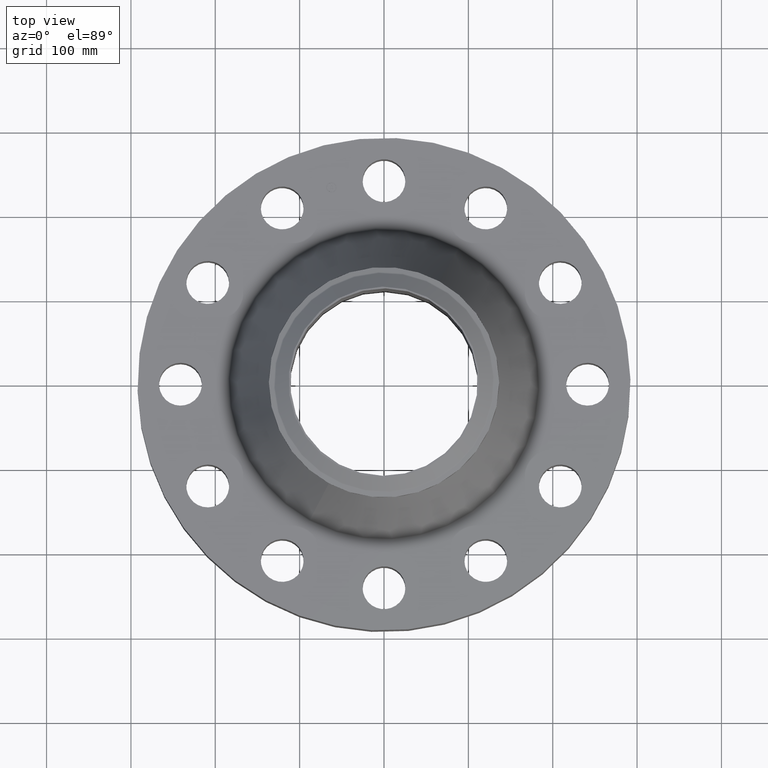
[diagram: clean part render]
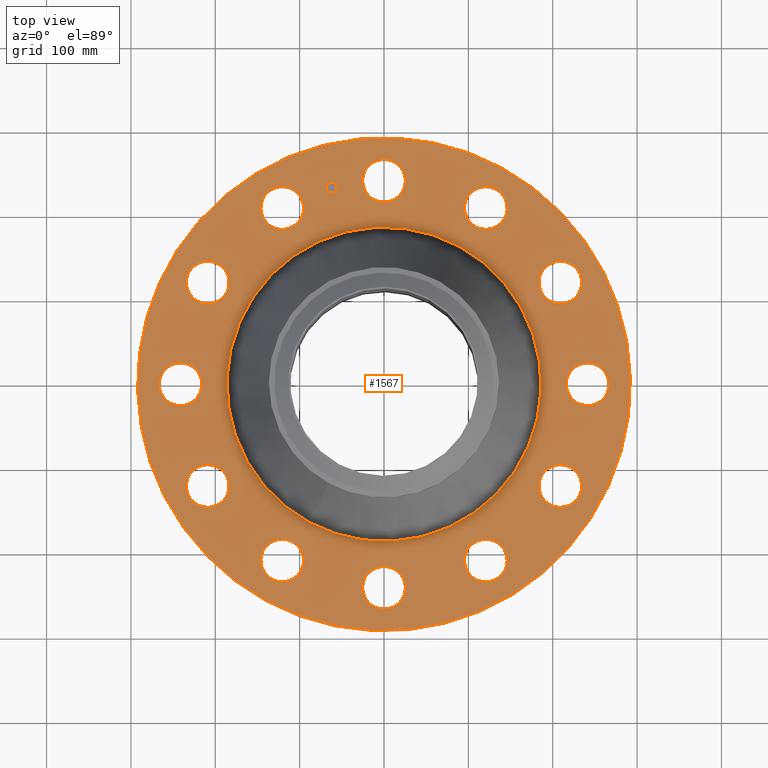
[diagram: same view with one face highlighted and labeled with its STEP entity id]
A machine part, top view. The second image highlights one B-rep face of the part: STEP entity #1567.
In plain terms, the highlighted planar face has unit normal (0, 0, -1).
Its self-contained STEP definition (entity closure, byte-faithful):
#65=AXIS2_PLACEMENT_3D('Circle Axis2P3D',#63,#64,$) ;
#82=AXIS2_PLACEMENT_3D('Circle Axis2P3D',#80,#81,$) ;
#115=AXIS2_PLACEMENT_3D('Circle Axis2P3D',#113,#114,$) ;
#139=AXIS2_PLACEMENT_3D('Circle Axis2P3D',#137,#138,$) ;
#156=AXIS2_PLACEMENT_3D('Circle Axis2P3D',#154,#155,$) ;
#191=AXIS2_PLACEMENT_3D('Circle Axis2P3D',#189,#190,$) ;
#804=AXIS2_PLACEMENT_3D('Circle Axis2P3D',#802,#803,$) ;
#816=AXIS2_PLACEMENT_3D('Circle Axis2P3D',#814,#815,$) ;
#847=AXIS2_PLACEMENT_3D('Circle Axis2P3D',#845,#846,$) ;
#859=AXIS2_PLACEMENT_3D('Circle Axis2P3D',#857,#858,$) ;
#890=AXIS2_PLACEMENT_3D('Circle Axis2P3D',#888,#889,$) ;
#902=AXIS2_PLACEMENT_3D('Circle Axis2P3D',#900,#901,$) ;
#933=AXIS2_PLACEMENT_3D('Circle Axis2P3D',#931,#932,$) ;
#945=AXIS2_PLACEMENT_3D('Circle Axis2P3D',#943,#944,$) ;
#976=AXIS2_PLACEMENT_3D('Circle Axis2P3D',#974,#975,$) ;
#988=AXIS2_PLACEMENT_3D('Circle Axis2P3D',#986,#987,$) ;
#1019=AXIS2_PLACEMENT_3D('Circle Axis2P3D',#1017,#1018,$) ;
#1031=AXIS2_PLACEMENT_3D('Circle Axis2P3D',#1029,#1030,$) ;
#1062=AXIS2_PLACEMENT_3D('Circle Axis2P3D',#1060,#1061,$) ;
#1074=AXIS2_PLACEMENT_3D('Circle Axis2P3D',#1072,#1073,$) ;
#1105=AXIS2_PLACEMENT_3D('Circle Axis2P3D',#1103,#1104,$) ;
#1117=AXIS2_PLACEMENT_3D('Circle Axis2P3D',#1115,#1116,$) ;
#1148=AXIS2_PLACEMENT_3D('Circle Axis2P3D',#1146,#1147,$) ;
#1160=AXIS2_PLACEMENT_3D('Circle Axis2P3D',#1158,#1159,$) ;
#1191=AXIS2_PLACEMENT_3D('Circle Axis2P3D',#1189,#1190,$) ;
#1203=AXIS2_PLACEMENT_3D('Circle Axis2P3D',#1201,#1202,$) ;
#1234=AXIS2_PLACEMENT_3D('Circle Axis2P3D',#1232,#1233,$) ;
#1246=AXIS2_PLACEMENT_3D('Circle Axis2P3D',#1244,#1245,$) ;
#1491=AXIS2_PLACEMENT_3D('Plane Axis2P3D',#1488,#1489,#1490) ;
#1551=AXIS2_PLACEMENT_3D('Circle Axis2P3D',#1549,#1550,$) ;
#1560=AXIS2_PLACEMENT_3D('Circle Axis2P3D',#1558,#1559,$) ;
#46=CARTESIAN_POINT('Vertex',(-0.877582561894,9.97942553864,4.25000000002)) ;
#60=CARTESIAN_POINT('Vertex',(0.877582561894,9.02057446143,4.25000000002)) ;
#63=CARTESIAN_POINT('Axis2P3D Location',(0.,9.50000000004,4.25000000002)) ;
#80=CARTESIAN_POINT('Axis2P3D Location',(0.,9.50000000004,4.25000000002)) ;
#110=CARTESIAN_POINT('Vertex',(-5.51339369397,-10.0921994618,4.25000000002)) ;
#113=CARTESIAN_POINT('Axis2P3D Location',(0.,0.,4.25000000002)) ;
#117=CARTESIAN_POINT('Vertex',(5.51339369397,10.0921994618,4.25000000002)) ;
#137=CARTESIAN_POINT('Axis2P3D Location',(0.,0.,4.25000000002)) ;
#154=CARTESIAN_POINT('Axis2P3D Location',(0.,0.,4.25000000002)) ;
#158=CARTESIAN_POINT('Vertex',(3.51557957745,6.43522525122,4.25000000002)) ;
#160=CARTESIAN_POINT('Vertex',(-3.51557957745,-6.43522525122,4.25000000002)) ;
#189=CARTESIAN_POINT('Axis2P3D Location',(0.,0.,4.25000000002)) ;
#792=CARTESIAN_POINT('Vertex',(-4.2297039768,-9.08122731259,4.25000000002)) ;
#799=CARTESIAN_POINT('Vertex',(-5.27029602323,-7.37325535938,4.25000000002)) ;
#802=CARTESIAN_POINT('Axis2P3D Location',(-4.75000000002,-8.22724133599,4.25000000002)) ;
#814=CARTESIAN_POINT('Axis2P3D Location',(-4.75000000002,-8.22724133599,4.25000000002)) ;
#835=CARTESIAN_POINT('Vertex',(8.20364475069,5.74972156184,4.25000000002)) ;
#842=CARTESIAN_POINT('Vertex',(8.25083792128,3.7502784382,4.25000000002)) ;
#845=CARTESIAN_POINT('Axis2P3D Location',(8.22724133599,4.75000000002,4.25000000002)) ;
#857=CARTESIAN_POINT('Axis2P3D Location',(8.22724133599,4.75000000002,4.25000000002)) ;
#878=CARTESIAN_POINT('Vertex',(-8.20364475069,-5.74972156184,4.25000000002)) ;
#885=CARTESIAN_POINT('Vertex',(-8.25083792128,-3.7502784382,4.25000000002)) ;
#888=CARTESIAN_POINT('Axis2P3D Location',(-8.22724133599,-4.75000000002,4.25000000002)) ;
#900=CARTESIAN_POINT('Axis2P3D Location',(-8.22724133599,-4.75000000002,4.25000000002)) ;
#921=CARTESIAN_POINT('Vertex',(9.97942553864,0.877582561894,4.25000000002)) ;
#928=CARTESIAN_POINT('Vertex',(9.02057446143,-0.877582561894,4.25000000002)) ;
#931=CARTESIAN_POINT('Axis2P3D Location',(9.50000000004,5.81707229597E-016,4.25000000002)) ;
#943=CARTESIAN_POINT('Axis2P3D Location',(9.50000000004,5.81707229597E-016,4.25000000002)) ;
#964=CARTESIAN_POINT('Vertex',(-9.97942553864,-0.877582561894,4.25000000002)) ;
#971=CARTESIAN_POINT('Vertex',(-9.02057446143,0.877582561894,4.25000000002)) ;
#974=CARTESIAN_POINT('Axis2P3D Location',(-9.50000000004,-1.74512168879E-015,4.25000000002)) ;
#986=CARTESIAN_POINT('Axis2P3D Location',(-9.50000000004,-1.74512168879E-015,4.25000000002)) ;
#1007=CARTESIAN_POINT('Vertex',(9.08122731259,-4.2297039768,4.25000000002)) ;
#1014=CARTESIAN_POINT('Vertex',(7.37325535938,-5.27029602323,4.25000000002)) ;
#1017=CARTESIAN_POINT('Axis2P3D Location',(8.22724133599,-4.75000000002,4.25000000002)) ;
#1029=CARTESIAN_POINT('Axis2P3D Location',(8.22724133599,-4.75000000002,4.25000000002)) ;
#1050=CARTESIAN_POINT('Vertex',(-9.08122731259,4.2297039768,4.25000000002)) ;
#1057=CARTESIAN_POINT('Vertex',(-7.37325535938,5.27029602323,4.25000000002)) ;
#1060=CARTESIAN_POINT('Axis2P3D Location',(-8.22724133599,4.75000000002,4.25000000002)) ;
#1072=CARTESIAN_POINT('Axis2P3D Location',(-8.22724133599,4.75000000002,4.25000000002)) ;
#1093=CARTESIAN_POINT('Vertex',(5.74972156184,-8.20364475069,4.25000000002)) ;
#1100=CARTESIAN_POINT('Vertex',(3.7502784382,-8.25083792128,4.25000000002)) ;
#1103=CARTESIAN_POINT('Axis2P3D Location',(4.75000000002,-8.22724133599,4.25000000002)) ;
#1115=CARTESIAN_POINT('Axis2P3D Location',(4.75000000002,-8.22724133599,4.25000000002)) ;
#1136=CARTESIAN_POINT('Vertex',(-5.74972156184,8.20364475069,4.25000000002)) ;
#1143=CARTESIAN_POINT('Vertex',(-3.7502784382,8.25083792128,4.25000000002)) ;
#1146=CARTESIAN_POINT('Axis2P3D Location',(-4.75000000002,8.22724133599,4.25000000002)) ;
#1158=CARTESIAN_POINT('Axis2P3D Location',(-4.75000000002,8.22724133599,4.25000000002)) ;
#1179=CARTESIAN_POINT('Vertex',(0.877582561894,-9.97942553864,4.25000000002)) ;
#1186=CARTESIAN_POINT('Vertex',(-0.877582561894,-9.02057446143,4.25000000002)) ;
#1189=CARTESIAN_POINT('Axis2P3D Location',(1.16341445919E-015,-9.50000000004,4.25000000002)) ;
#1201=CARTESIAN_POINT('Axis2P3D Location',(1.16341445919E-015,-9.50000000004,4.25000000002)) ;
#1222=CARTESIAN_POINT('Vertex',(4.2297039768,9.08122731259,4.25000000002)) ;
#1229=CARTESIAN_POINT('Vertex',(5.27029602323,7.37325535938,4.25000000002)) ;
#1232=CARTESIAN_POINT('Axis2P3D Location',(4.75000000002,8.22724133599,4.25000000002)) ;
#1244=CARTESIAN_POINT('Axis2P3D Location',(4.75000000002,8.22724133599,4.25000000002)) ;
#1488=CARTESIAN_POINT('Axis2P3D Location',(0.,11.5,4.25000000002)) ;
#1549=CARTESIAN_POINT('Axis2P3D Location',(-2.45878092848,9.17629534978,4.25000000002)) ;
#1553=CARTESIAN_POINT('Vertex',(-2.69784757049,9.11223763612,4.25000000002)) ;
#1555=CARTESIAN_POINT('Vertex',(-2.21971428648,9.24035306345,4.25000000002)) ;
#1558=CARTESIAN_POINT('Axis2P3D Location',(-2.45878092848,9.17629534978,4.25000000002)) ;
#64=DIRECTION('Axis2P3D Direction',(0.,-0.,-0.0393700787402)) ;
#81=DIRECTION('Axis2P3D Direction',(0.,-0.,-0.0393700787402)) ;
#114=DIRECTION('Axis2P3D Direction',(0.,0.,-0.0393700787402)) ;
#138=DIRECTION('Axis2P3D Direction',(0.,0.,-0.0393700787402)) ;
#155=DIRECTION('Axis2P3D Direction',(0.,0.,-0.0393700787402)) ;
#190=DIRECTION('Axis2P3D Direction',(0.,0.,-0.0393700787402)) ;
#803=DIRECTION('Axis2P3D Direction',(0.,0.,-0.0393700787402)) ;
#815=DIRECTION('Axis2P3D Direction',(0.,0.,-0.0393700787402)) ;
#846=DIRECTION('Axis2P3D Direction',(0.,-0.,-0.0393700787402)) ;
#858=DIRECTION('Axis2P3D Direction',(0.,-0.,-0.0393700787402)) ;
#889=DIRECTION('Axis2P3D Direction',(0.,0.,-0.0393700787402)) ;
#901=DIRECTION('Axis2P3D Direction',(0.,0.,-0.0393700787402)) ;
#932=DIRECTION('Axis2P3D Direction',(0.,-0.,-0.0393700787402)) ;
#944=DIRECTION('Axis2P3D Direction',(0.,-0.,-0.0393700787402)) ;
#975=DIRECTION('Axis2P3D Direction',(0.,0.,-0.0393700787402)) ;
#987=DIRECTION('Axis2P3D Direction',(0.,0.,-0.0393700787402)) ;
#1018=DIRECTION('Axis2P3D Direction',(-0.,0.,-0.0393700787402)) ;
#1030=DIRECTION('Axis2P3D Direction',(-0.,0.,-0.0393700787402)) ;
#1061=DIRECTION('Axis2P3D Direction',(0.,0.,-0.0393700787402)) ;
#1073=DIRECTION('Axis2P3D Direction',(0.,0.,-0.0393700787402)) ;
#1104=DIRECTION('Axis2P3D Direction',(-0.,0.,-0.0393700787402)) ;
#1116=DIRECTION('Axis2P3D Direction',(-0.,0.,-0.0393700787402)) ;
#1147=DIRECTION('Axis2P3D Direction',(0.,0.,-0.0393700787402)) ;
#1159=DIRECTION('Axis2P3D Direction',(0.,0.,-0.0393700787402)) ;
#1190=DIRECTION('Axis2P3D Direction',(-0.,0.,-0.0393700787402)) ;
#1202=DIRECTION('Axis2P3D Direction',(-0.,0.,-0.0393700787402)) ;
#1233=DIRECTION('Axis2P3D Direction',(0.,-0.,-0.0393700787402)) ;
#1245=DIRECTION('Axis2P3D Direction',(0.,-0.,-0.0393700787402)) ;
#1489=DIRECTION('Axis2P3D Direction',(0.,0.,-0.0393700787402)) ;
#1490=DIRECTION('Axis2P3D XDirection',(0.0393700787402,0.,0.)) ;
#1550=DIRECTION('Axis2P3D Direction',(0.,0.,-0.0393700787402)) ;
#1559=DIRECTION('Axis2P3D Direction',(0.,0.,-0.0393700787402)) ;
#1494=ORIENTED_EDGE('',*,*,#141,.F.) ;
#1495=ORIENTED_EDGE('',*,*,#119,.F.) ;
#1498=ORIENTED_EDGE('',*,*,#67,.T.) ;
#1499=ORIENTED_EDGE('',*,*,#84,.T.) ;
#1502=ORIENTED_EDGE('',*,*,#193,.T.) ;
#1503=ORIENTED_EDGE('',*,*,#162,.T.) ;
#1506=ORIENTED_EDGE('',*,*,#1248,.T.) ;
#1507=ORIENTED_EDGE('',*,*,#1236,.T.) ;
#1510=ORIENTED_EDGE('',*,*,#861,.T.) ;
#1511=ORIENTED_EDGE('',*,*,#849,.T.) ;
#1514=ORIENTED_EDGE('',*,*,#947,.T.) ;
#1515=ORIENTED_EDGE('',*,*,#935,.T.) ;
#1518=ORIENTED_EDGE('',*,*,#1033,.T.) ;
#1519=ORIENTED_EDGE('',*,*,#1021,.T.) ;
#1522=ORIENTED_EDGE('',*,*,#1119,.T.) ;
#1523=ORIENTED_EDGE('',*,*,#1107,.T.) ;
#1526=ORIENTED_EDGE('',*,*,#1205,.T.) ;
#1527=ORIENTED_EDGE('',*,*,#1193,.T.) ;
#1530=ORIENTED_EDGE('',*,*,#818,.T.) ;
#1531=ORIENTED_EDGE('',*,*,#806,.T.) ;
#1534=ORIENTED_EDGE('',*,*,#904,.T.) ;
#1535=ORIENTED_EDGE('',*,*,#892,.T.) ;
#1538=ORIENTED_EDGE('',*,*,#990,.T.) ;
#1539=ORIENTED_EDGE('',*,*,#978,.T.) ;
#1542=ORIENTED_EDGE('',*,*,#1076,.T.) ;
#1543=ORIENTED_EDGE('',*,*,#1064,.T.) ;
#1546=ORIENTED_EDGE('',*,*,#1162,.T.) ;
#1547=ORIENTED_EDGE('',*,*,#1150,.T.) ;
#1564=ORIENTED_EDGE('',*,*,#1557,.T.) ;
#1565=ORIENTED_EDGE('',*,*,#1562,.T.) ;
#1500=FACE_BOUND('',#1497,.T.) ;
#1504=FACE_BOUND('',#1501,.T.) ;
#1508=FACE_BOUND('',#1505,.T.) ;
#1512=FACE_BOUND('',#1509,.T.) ;
#1516=FACE_BOUND('',#1513,.T.) ;
#1520=FACE_BOUND('',#1517,.T.) ;
#1524=FACE_BOUND('',#1521,.T.) ;
#1528=FACE_BOUND('',#1525,.T.) ;
#1532=FACE_BOUND('',#1529,.T.) ;
#1536=FACE_BOUND('',#1533,.T.) ;
#1540=FACE_BOUND('',#1537,.T.) ;
#1544=FACE_BOUND('',#1541,.T.) ;
#1548=FACE_BOUND('',#1545,.T.) ;
#1566=FACE_BOUND('',#1563,.T.) ;
#1567=ADVANCED_FACE('PartBody',(#1496,#1500,#1504,#1508,#1512,#1516,#1520,#1524,#1528,#1532,#1536,#1540,#1544,#1548,#1566),#1492,.F.) ;
#66=CIRCLE('generated circle',#65,1.) ;
#83=CIRCLE('generated circle',#82,1.) ;
#116=CIRCLE('generated circle',#115,11.5) ;
#140=CIRCLE('generated circle',#139,11.5) ;
#157=CIRCLE('generated circle',#156,7.33290009473) ;
#192=CIRCLE('generated circle',#191,7.33290009473) ;
#805=CIRCLE('generated circle',#804,1.) ;
#817=CIRCLE('generated circle',#816,1.) ;
#848=CIRCLE('generated circle',#847,1.) ;
#860=CIRCLE('generated circle',#859,1.) ;
#891=CIRCLE('generated circle',#890,1.) ;
#903=CIRCLE('generated circle',#902,1.) ;
#934=CIRCLE('generated circle',#933,1.) ;
#946=CIRCLE('generated circle',#945,1.) ;
#977=CIRCLE('generated circle',#976,1.) ;
#989=CIRCLE('generated circle',#988,1.) ;
#1020=CIRCLE('generated circle',#1019,1.) ;
#1032=CIRCLE('generated circle',#1031,1.) ;
#1063=CIRCLE('generated circle',#1062,1.) ;
#1075=CIRCLE('generated circle',#1074,1.) ;
#1106=CIRCLE('generated circle',#1105,1.) ;
#1118=CIRCLE('generated circle',#1117,1.) ;
#1149=CIRCLE('generated circle',#1148,1.) ;
#1161=CIRCLE('generated circle',#1160,1.) ;
#1192=CIRCLE('generated circle',#1191,1.) ;
#1204=CIRCLE('generated circle',#1203,1.) ;
#1235=CIRCLE('generated circle',#1234,1.) ;
#1247=CIRCLE('generated circle',#1246,1.) ;
#1552=CIRCLE('generated circle',#1551,0.247500000001) ;
#1561=CIRCLE('generated circle',#1560,0.247500000001) ;
#67=EDGE_CURVE('',#47,#61,#66,.T.) ;
#84=EDGE_CURVE('',#61,#47,#83,.T.) ;
#119=EDGE_CURVE('',#111,#118,#116,.T.) ;
#141=EDGE_CURVE('',#118,#111,#140,.T.) ;
#162=EDGE_CURVE('',#159,#161,#157,.T.) ;
#193=EDGE_CURVE('',#161,#159,#192,.T.) ;
#806=EDGE_CURVE('',#793,#800,#805,.T.) ;
#818=EDGE_CURVE('',#800,#793,#817,.T.) ;
#849=EDGE_CURVE('',#836,#843,#848,.T.) ;
#861=EDGE_CURVE('',#843,#836,#860,.T.) ;
#892=EDGE_CURVE('',#879,#886,#891,.T.) ;
#904=EDGE_CURVE('',#886,#879,#903,.T.) ;
#935=EDGE_CURVE('',#922,#929,#934,.T.) ;
#947=EDGE_CURVE('',#929,#922,#946,.T.) ;
#978=EDGE_CURVE('',#965,#972,#977,.T.) ;
#990=EDGE_CURVE('',#972,#965,#989,.T.) ;
#1021=EDGE_CURVE('',#1008,#1015,#1020,.T.) ;
#1033=EDGE_CURVE('',#1015,#1008,#1032,.T.) ;
#1064=EDGE_CURVE('',#1051,#1058,#1063,.T.) ;
#1076=EDGE_CURVE('',#1058,#1051,#1075,.T.) ;
#1107=EDGE_CURVE('',#1094,#1101,#1106,.T.) ;
#1119=EDGE_CURVE('',#1101,#1094,#1118,.T.) ;
#1150=EDGE_CURVE('',#1137,#1144,#1149,.T.) ;
#1162=EDGE_CURVE('',#1144,#1137,#1161,.T.) ;
#1193=EDGE_CURVE('',#1180,#1187,#1192,.T.) ;
#1205=EDGE_CURVE('',#1187,#1180,#1204,.T.) ;
#1236=EDGE_CURVE('',#1223,#1230,#1235,.T.) ;
#1248=EDGE_CURVE('',#1230,#1223,#1247,.T.) ;
#1557=EDGE_CURVE('',#1554,#1556,#1552,.T.) ;
#1562=EDGE_CURVE('',#1556,#1554,#1561,.T.) ;
#1493=EDGE_LOOP('',(#1494,#1495)) ;
#1497=EDGE_LOOP('',(#1498,#1499)) ;
#1501=EDGE_LOOP('',(#1502,#1503)) ;
#1505=EDGE_LOOP('',(#1506,#1507)) ;
#1509=EDGE_LOOP('',(#1510,#1511)) ;
#1513=EDGE_LOOP('',(#1514,#1515)) ;
#1517=EDGE_LOOP('',(#1518,#1519)) ;
#1521=EDGE_LOOP('',(#1522,#1523)) ;
#1525=EDGE_LOOP('',(#1526,#1527)) ;
#1529=EDGE_LOOP('',(#1530,#1531)) ;
#1533=EDGE_LOOP('',(#1534,#1535)) ;
#1537=EDGE_LOOP('',(#1538,#1539)) ;
#1541=EDGE_LOOP('',(#1542,#1543)) ;
#1545=EDGE_LOOP('',(#1546,#1547)) ;
#1563=EDGE_LOOP('',(#1564,#1565)) ;
#1496=FACE_OUTER_BOUND('',#1493,.T.) ;
#1492=PLANE('',#1491) ;
#47=VERTEX_POINT('',#46) ;
#61=VERTEX_POINT('',#60) ;
#111=VERTEX_POINT('',#110) ;
#118=VERTEX_POINT('',#117) ;
#159=VERTEX_POINT('',#158) ;
#161=VERTEX_POINT('',#160) ;
#793=VERTEX_POINT('',#792) ;
#800=VERTEX_POINT('',#799) ;
#836=VERTEX_POINT('',#835) ;
#843=VERTEX_POINT('',#842) ;
#879=VERTEX_POINT('',#878) ;
#886=VERTEX_POINT('',#885) ;
#922=VERTEX_POINT('',#921) ;
#929=VERTEX_POINT('',#928) ;
#965=VERTEX_POINT('',#964) ;
#972=VERTEX_POINT('',#971) ;
#1008=VERTEX_POINT('',#1007) ;
#1015=VERTEX_POINT('',#1014) ;
#1051=VERTEX_POINT('',#1050) ;
#1058=VERTEX_POINT('',#1057) ;
#1094=VERTEX_POINT('',#1093) ;
#1101=VERTEX_POINT('',#1100) ;
#1137=VERTEX_POINT('',#1136) ;
#1144=VERTEX_POINT('',#1143) ;
#1180=VERTEX_POINT('',#1179) ;
#1187=VERTEX_POINT('',#1186) ;
#1223=VERTEX_POINT('',#1222) ;
#1230=VERTEX_POINT('',#1229) ;
#1554=VERTEX_POINT('',#1553) ;
#1556=VERTEX_POINT('',#1555) ;